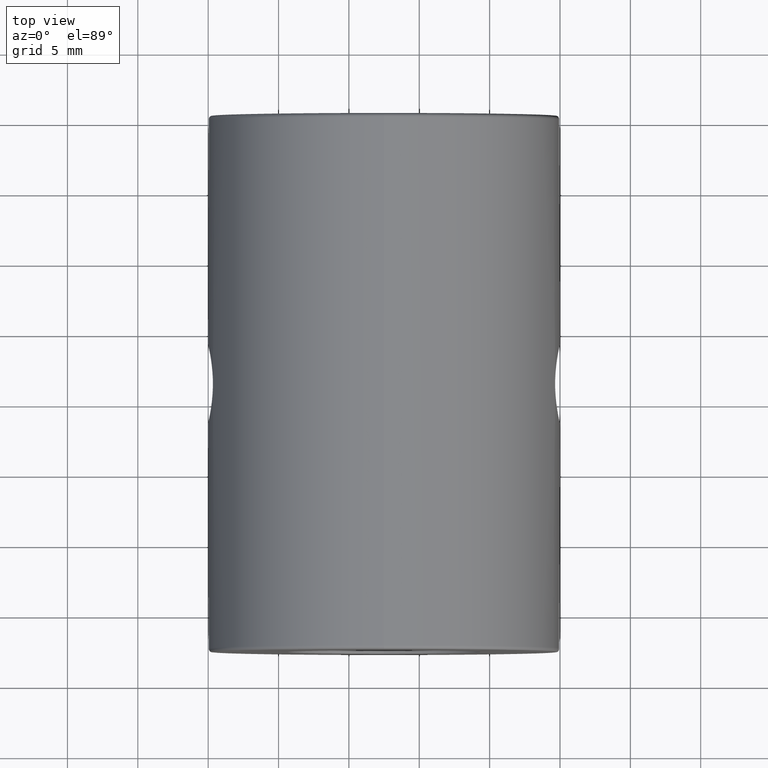
[diagram: clean part render]
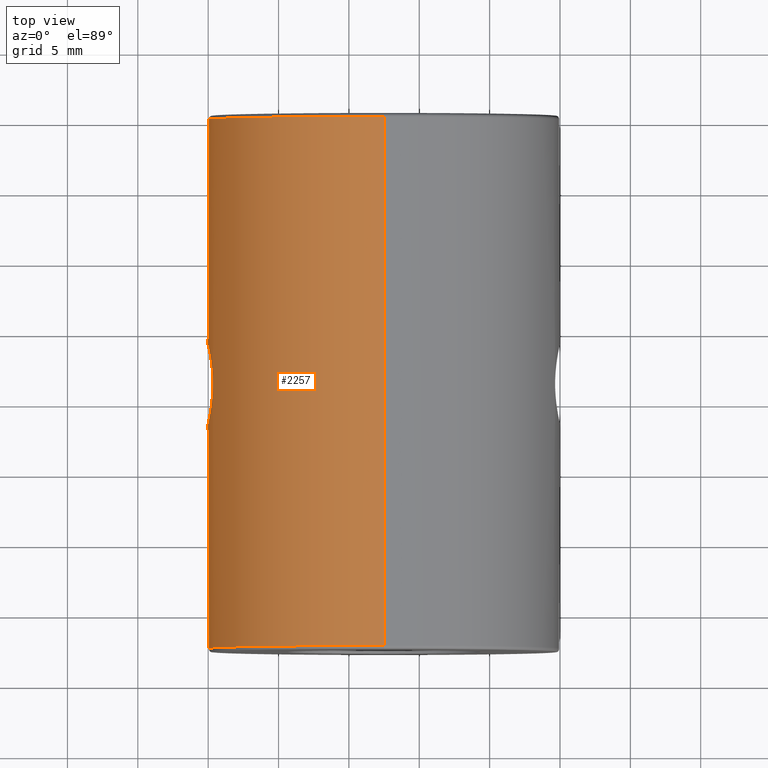
[diagram: same view with one face highlighted and labeled with its STEP entity id]
A machine part, top view. The second image highlights one B-rep face of the part: STEP entity #2257.
In plain terms, the highlighted cylindrical surface (partial cylindrical patch) has radius 12.5 mm, axis along (-0, -1, -0).
Its self-contained STEP definition (entity closure, byte-faithful):
#5 = CARTESIAN_POINT ( 'NONE',  ( -34.66304078550321321, 1.581811714230924704, 52.90465927043069172 ) ) ;
#12 = ORIENTED_EDGE ( 'NONE', *, *, #713, .F. ) ;
#21 = CARTESIAN_POINT ( 'NONE',  ( -34.74801352654728248, 2.806830232067575981, 52.52488523745060434 ) ) ;
#167 = CARTESIAN_POINT ( 'NONE',  ( -22.50520183104453409, -17.40174781523061043, 37.50000000000000711 ) ) ;
#176 = CARTESIAN_POINT ( 'NONE',  ( -35.00520147448046515, 4.209585013875000392, 50.00298564924417377 ) ) ;
#209 = CARTESIAN_POINT ( 'NONE',  ( -34.66651604185612712, 1.768063399759308929, 47.10968654197857575 ) ) ;
#226 = CARTESIAN_POINT ( 'NONE',  ( -34.68408990658817714, 0.6657967389098945477, 47.18465315096345591 ) ) ;
#245 = CARTESIAN_POINT ( 'NONE',  ( -34.66192908598773670, 1.582225631726125847, 47.09070756900332810 ) ) ;
#248 = CARTESIAN_POINT ( 'NONE',  ( -34.69719134326540910, 0.4871785545118786365, 52.75879586371015506 ) ) ;
#284 = CARTESIAN_POINT ( 'NONE',  ( -34.69672515563068060, 2.303875218722896356, 52.76087174921033096 ) ) ;
#297 = AXIS2_PLACEMENT_3D ( 'NONE', #2948, #2168, #547 ) ;
#302 = CARTESIAN_POINT ( 'NONE',  ( -34.92002400583491806, 3.832124608321444637, 51.45923812920060669 ) ) ;
#322 = CARTESIAN_POINT ( 'NONE',  ( -35.00520147448046515, 4.209585013875000392, 50.00298564924417377 ) ) ;
#351 = CARTESIAN_POINT ( 'NONE',  ( -34.98691299262922172, -1.339639162907460657, 49.23677669530715661 ) ) ;
#376 = CARTESIAN_POINT ( 'NONE',  ( -22.50520183104453409, 20.19825218476939099, 37.50000000000000711 ) ) ;
#463 = CIRCLE ( 'NONE', #297, 12.49999999999999645 ) ;
#491 = CARTESIAN_POINT ( 'NONE',  ( -34.97116716007146664, 4.065639543320918037, 49.06127516942773781 ) ) ;
#511 = CARTESIAN_POINT ( 'NONE',  ( -34.66645419302998476, 1.029721679353744479, 47.10942330579132431 ) ) ;
#530 = CARTESIAN_POINT ( 'NONE',  ( -35.00520183104453764, -1.413082124769261094, 50.00000000000000000 ) ) ;
#547 = DIRECTION ( 'NONE',  ( 0.0000000000000000000, 0.0000000000000000000, 1.000000000000000000 ) ) ;
#550 = EDGE_CURVE ( 'NONE', #3357, #2224, #1415, .T. ) ;
#563 = CARTESIAN_POINT ( 'NONE',  ( -34.81267991287744223, -0.4618486555359330725, 52.18960616400304531 ) ) ;
#599 = CARTESIAN_POINT ( 'NONE',  ( -34.81205133254195516, 3.254567286170652274, 52.19320050888278928 ) ) ;
#610 = CARTESIAN_POINT ( 'NONE',  ( -35.00520183104453764, -1.413082124769261094, 50.00000000000000000 ) ) ;
#618 = VERTEX_POINT ( 'NONE', #167 ) ;
#625 = CYLINDRICAL_SURFACE ( 'NONE', #1958, 12.49999999999999645 ) ;
#661 = CARTESIAN_POINT ( 'NONE',  ( -22.50520183104453409, 20.44825218476939099, 62.50000000000000000 ) ) ;
#673 = ORIENTED_EDGE ( 'NONE', *, *, #550, .T. ) ;
#713 = EDGE_CURVE ( 'NONE', #2615, #2919, #3091, .T. ) ;
#743 = EDGE_LOOP ( 'NONE', ( #673, #1959 ) ) ;
#753 = CARTESIAN_POINT ( 'NONE',  ( -34.87974277256410716, 3.646729404359454918, 48.21237859108569523 ) ) ;
#772 = CARTESIAN_POINT ( 'NONE',  ( -34.74815230533807409, -0.01157353966920271482, 47.47574332335685909 ) ) ;
#784 = CARTESIAN_POINT ( 'NONE',  ( -22.50520183104453409, -17.40174781523061043, 62.50000000000000000 ) ) ;
#791 = CARTESIAN_POINT ( 'NONE',  ( -34.66652474597602662, 1.028189448967915309, 52.89027716194796369 ) ) ;
#809 = CARTESIAN_POINT ( 'NONE',  ( -35.00520183104452343, -1.413082142476712599, 50.19045706908698179 ) ) ;
#825 = CARTESIAN_POINT ( 'NONE',  ( -34.68406788086936388, 0.6663276252035801317, 52.81543937149060497 ) ) ;
#842 = CARTESIAN_POINT ( 'NONE',  ( -34.98275065808893913, -1.318488312182780620, 50.75447521940760964 ) ) ;
#859 = CARTESIAN_POINT ( 'NONE',  ( -34.98663707284357116, 4.134943201847188554, 50.76675213544120169 ) ) ;
#920 = CARTESIAN_POINT ( 'NONE',  ( -22.50520183104453409, 20.44825218476939099, 50.00000000000000000 ) ) ;
#1009 = CARTESIAN_POINT ( 'NONE',  ( -34.92056304550113310, -1.039858968507657355, 48.53915210879909381 ) ) ;
#1011 = EDGE_CURVE ( 'NONE', #2224, #3357, #1123, .T. ) ;
#1029 = CARTESIAN_POINT ( 'NONE',  ( -34.69691194385200106, 2.305978899381978753, 47.23996501525846270 ) ) ;
#1048 = CARTESIAN_POINT ( 'NONE',  ( -34.96325857830174755, -1.233718698016873949, 51.02694110181723630 ) ) ;
#1056 = EDGE_CURVE ( 'NONE', #2615, #1434, #463, .T. ) ;
#1067 = CARTESIAN_POINT ( 'NONE',  ( -34.93964974343706587, -1.128013625721380198, 51.29060020607743553 ) ) ;
#1085 = CARTESIAN_POINT ( 'NONE',  ( -34.85728882726728273, -0.7200549649587002499, 51.92206626472207631 ) ) ;
#1101 = CARTESIAN_POINT ( 'NONE',  ( -34.98808031034366195, -1.341176413148228441, 50.66066995141611784 ) ) ;
#1123 = B_SPLINE_CURVE_WITH_KNOTS ( 'NONE', 3,
 ( #322, #1378, #859, #1345, #1856, #302, #1922, #2998, #2402, #599, #2421, #21, #1638, #284, #3220, #2646, #2698, #5, #1327, #1309, #791, #825, #248, #3443, #2454, #2133, #563, #1085, #3204, #2149, #1067, #1048, #1887, #842, #1101, #2115, #809, #530 ),
 .UNSPECIFIED., .F., .F.,
 ( 4, 2, 2, 2, 2, 2, 2, 2, 2, 2, 2, 2, 2, 2, 2, 2, 2, 2, 4 ),
 ( 0.5000000000000000000, 0.5624999999999963363, 0.5781249999999958922, 0.5937499999999955591, 0.6249999999999956701, 0.6562499999999957812, 0.6874999999999960032, 0.7187499999999961142, 0.7343749999999962252, 0.7499999999999962252, 0.7812499999999964473, 0.8124999999999966693, 0.8437499999999968914, 0.8749999999999971134, 0.9062499999999973355, 0.9374999999999975575, 0.9531249999999981126, 0.9687499999999986677, 1.000000000000000000 ),
 .UNSPECIFIED. ) ;
#1125 = FACE_OUTER_BOUND ( 'NONE', #3210, .T. ) ;
#1155 = LINE ( 'NONE', #1656, #2585 ) ;
#1178 = CIRCLE ( 'NONE', #3130, 12.49999999999999645 ) ;
#1272 = CARTESIAN_POINT ( 'NONE',  ( -34.68404829437809411, 2.129844607690513758, 47.18447624015430364 ) ) ;
#1287 = EDGE_CURVE ( 'NONE', #1434, #618, #1155, .T. ) ;
#1291 = CARTESIAN_POINT ( 'NONE',  ( -34.98371482563761248, 4.119216514428293507, 49.24348063879142501 ) ) ;
#1309 = CARTESIAN_POINT ( 'NONE',  ( -34.66195746431353086, 1.211812476570059749, 52.90917384922278899 ) ) ;
#1327 = CARTESIAN_POINT ( 'NONE',  ( -34.66191919043989600, 1.488437803988814201, 52.90933378057252412 ) ) ;
#1345 = CARTESIAN_POINT ( 'NONE',  ( -34.94725856887868076, 3.958573559328212976, 51.20539725434922218 ) ) ;
#1378 = CARTESIAN_POINT ( 'NONE',  ( -35.00511057740311571, 4.209214405473674425, 50.38354389353439444 ) ) ;
#1415 = B_SPLINE_CURVE_WITH_KNOTS ( 'NONE', 3,
 ( #610, #2213, #351, #1565, #1009, #2909, #3166, #2644, #1546, #772, #2625, #1835, #226, #511, #1817, #245, #209, #1272, #1029, #3408, #2078, #2343, #3148, #753, #2888, #491, #1291, #2363, #3426, #176 ),
 .UNSPECIFIED., .F., .F.,
 ( 4, 2, 2, 2, 2, 2, 2, 2, 2, 2, 2, 2, 2, 2, 4 ),
 ( 0.0000000000000000000, 0.06250000000000023592, 0.09375000000000036082, 0.1250000000000004718, 0.1562500000000005829, 0.1875000000000007216, 0.2187500000000008327, 0.2500000000000009437, 0.2812500000000010547, 0.3125000000000011657, 0.3437500000000012768, 0.3750000000000014433, 0.4375000000000007216, 0.4687500000000003886, 0.5000000000000000000 ),
 .UNSPECIFIED. ) ;
#1424 = DIRECTION ( 'NONE',  ( 0.0000000000000000000, 0.0000000000000000000, -1.000000000000000000 ) ) ;
#1434 = VERTEX_POINT ( 'NONE', #376 ) ;
#1458 = DIRECTION ( 'NONE',  ( -0.0000000000000000000, -1.000000000000000000, -0.0000000000000000000 ) ) ;
#1475 = DIRECTION ( 'NONE',  ( -0.0000000000000000000, -1.000000000000000000, -0.0000000000000000000 ) ) ;
#1523 = ORIENTED_EDGE ( 'NONE', *, *, #2667, .T. ) ;
#1546 = CARTESIAN_POINT ( 'NONE',  ( -34.79001590679293798, -0.3182597612465982162, 47.68806332053079444 ) ) ;
#1565 = CARTESIAN_POINT ( 'NONE',  ( -34.93943696047838898, -1.127055212600389877, 48.70724999343774897 ) ) ;
#1638 = CARTESIAN_POINT ( 'NONE',  ( -34.72905683929544551, 2.646135917274994309, 52.61400507397652149 ) ) ;
#1647 = DIRECTION ( 'NONE',  ( 0.0000000000000000000, 0.0000000000000000000, 1.000000000000000000 ) ) ;
#1656 = CARTESIAN_POINT ( 'NONE',  ( -22.50520183104453409, 20.44825218476939099, 37.50000000000000711 ) ) ;
#1662 = FACE_BOUND ( 'NONE', #743, .T. ) ;
#1817 = CARTESIAN_POINT ( 'NONE',  ( -34.66193446152058044, 1.214990703612184531, 47.09073003121876866 ) ) ;
#1835 = CARTESIAN_POINT ( 'NONE',  ( -34.69688201949649198, 0.4909844491418198231, 47.23984144479319269 ) ) ;
#1856 = CARTESIAN_POINT ( 'NONE',  ( -34.93867267744897021, 3.919447845722335622, 51.29073167660470745 ) ) ;
#1887 = CARTESIAN_POINT ( 'NONE',  ( -34.97029888078240134, -1.264562310693938763, 50.93798354388236760 ) ) ;
#1896 = CARTESIAN_POINT ( 'NONE',  ( -22.50520183104453409, -17.40174781523061043, 50.00000000000000000 ) ) ;
#1922 = CARTESIAN_POINT ( 'NONE',  ( -34.91000489703898069, 3.784083020720689916, 51.54180631078448016 ) ) ;
#1958 = AXIS2_PLACEMENT_3D ( 'NONE', #920, #1458, #1424 ) ;
#1959 = ORIENTED_EDGE ( 'NONE', *, *, #1011, .T. ) ;
#2053 = CARTESIAN_POINT ( 'NONE',  ( -35.00520183104453764, -1.413082124769261094, 50.00000000000000000 ) ) ;
#2078 = CARTESIAN_POINT ( 'NONE',  ( -34.74847621066366088, 2.810539836545223658, 47.47735429477532421 ) ) ;
#2115 = CARTESIAN_POINT ( 'NONE',  ( -35.00080834476376168, -1.395005945081189358, 50.38049639802564883 ) ) ;
#2133 = CARTESIAN_POINT ( 'NONE',  ( -34.79013651508780214, -0.3190703822772041343, 52.31129705553516374 ) ) ;
#2149 = CARTESIAN_POINT ( 'NONE',  ( -34.92091958337939417, -1.041568019954894675, 51.45788940168505832 ) ) ;
#2168 = DIRECTION ( 'NONE',  ( -0.0000000000000000000, -1.000000000000000000, -0.0000000000000000000 ) ) ;
#2213 = CARTESIAN_POINT ( 'NONE',  ( -35.00520183104453764, -1.413082089048386614, 49.61579498181202297 ) ) ;
#2224 = VERTEX_POINT ( 'NONE', #3278 ) ;
#2257 = ADVANCED_FACE ( 'NONE', ( #1125, #1662 ), #625, .T. ) ;
#2343 = CARTESIAN_POINT ( 'NONE',  ( -34.78997005406737486, 3.114338606149145594, 47.68786276459738360 ) ) ;
#2363 = CARTESIAN_POINT ( 'NONE',  ( -35.00086437889078184, 4.191749029194711262, 49.62049296388073572 ) ) ;
#2402 = CARTESIAN_POINT ( 'NONE',  ( -34.85705643049905689, 3.515358686858405246, 51.92363226179146096 ) ) ;
#2421 = CARTESIAN_POINT ( 'NONE',  ( -34.78950233568572514, 3.111229001386760284, 52.31461547249366362 ) ) ;
#2454 = CARTESIAN_POINT ( 'NONE',  ( -34.74827243126634357, -0.01252608454989689868, 52.52367520654303235 ) ) ;
#2473 = DIRECTION ( 'NONE',  ( -0.0000000000000000000, -1.000000000000000000, -0.0000000000000000000 ) ) ;
#2496 = ORIENTED_EDGE ( 'NONE', *, *, #1056, .T. ) ;
#2585 = VECTOR ( 'NONE', #2473, 1000.000000000000000 ) ;
#2612 = VECTOR ( 'NONE', #1475, 1000.000000000000000 ) ;
#2615 = VERTEX_POINT ( 'NONE', #3227 ) ;
#2625 = CARTESIAN_POINT ( 'NONE',  ( -34.72889004346956199, 0.1521183056323538452, 47.38523661628915562 ) ) ;
#2644 = CARTESIAN_POINT ( 'NONE',  ( -34.81216474023605656, -0.4587072315484868046, 47.80748851901130791 ) ) ;
#2646 = CARTESIAN_POINT ( 'NONE',  ( -34.67081540850393395, 1.856390161469762656, 52.87196965017502492 ) ) ;
#2667 = EDGE_CURVE ( 'NONE', #618, #2919, #1178, .T. ) ;
#2698 = CARTESIAN_POINT ( 'NONE',  ( -34.66752058121687696, 1.766213776379229383, 52.88584409472479564 ) ) ;
#2791 = ORIENTED_EDGE ( 'NONE', *, *, #1287, .T. ) ;
#2888 = CARTESIAN_POINT ( 'NONE',  ( -34.92365520087233932, 3.852890852562524060, 48.53098690626996614 ) ) ;
#2909 = CARTESIAN_POINT ( 'NONE',  ( -34.87939741778114211, -0.8359134743064384754, 48.22389352012678643 ) ) ;
#2919 = VERTEX_POINT ( 'NONE', #784 ) ;
#2948 = CARTESIAN_POINT ( 'NONE',  ( -22.50520183104453409, 20.19825218476939099, 50.00000000000000000 ) ) ;
#2998 = CARTESIAN_POINT ( 'NONE',  ( -34.87912024513033771, 3.630988285995109699, 51.77802314548131335 ) ) ;
#3091 = LINE ( 'NONE', #661, #2612 ) ;
#3130 = AXIS2_PLACEMENT_3D ( 'NONE', #1896, #3212, #1647 ) ;
#3148 = CARTESIAN_POINT ( 'NONE',  ( -34.81219287682090169, 3.255432286647920836, 47.80758469880397854 ) ) ;
#3166 = CARTESIAN_POINT ( 'NONE',  ( -34.85689439158824143, -0.7179281710618284906, 48.07538743319794605 ) ) ;
#3204 = CARTESIAN_POINT ( 'NONE',  ( -34.87963477420088054, -0.8371459404188490439, 51.77451349629000532 ) ) ;
#3210 = EDGE_LOOP ( 'NONE', ( #12, #2496, #2791, #1523 ) ) ;
#3212 = DIRECTION ( 'NONE',  ( 0.0000000000000000000, 1.000000000000000000, 0.0000000000000000000 ) ) ;
#3220 = CARTESIAN_POINT ( 'NONE',  ( -34.68386991631049909, 2.126930833336720728, 52.81629139459822397 ) ) ;
#3227 = CARTESIAN_POINT ( 'NONE',  ( -22.50520183104453409, 20.19825218476939099, 62.50000000000000000 ) ) ;
#3278 = CARTESIAN_POINT ( 'NONE',  ( -35.00520147448046515, 4.209585013875000392, 50.00298564924417377 ) ) ;
#3357 = VERTEX_POINT ( 'NONE', #2053 ) ;
#3408 = CARTESIAN_POINT ( 'NONE',  ( -34.72905173133278822, 2.645954825075548023, 47.38598351058158897 ) ) ;
#3426 = CARTESIAN_POINT ( 'NONE',  ( -35.00524692301912921, 4.209770318075666928, 49.81270652709903857 ) ) ;
#3443 = CARTESIAN_POINT ( 'NONE',  ( -34.72924432496670022, 0.1489096346318702635, 52.61311078802899743 ) ) ;